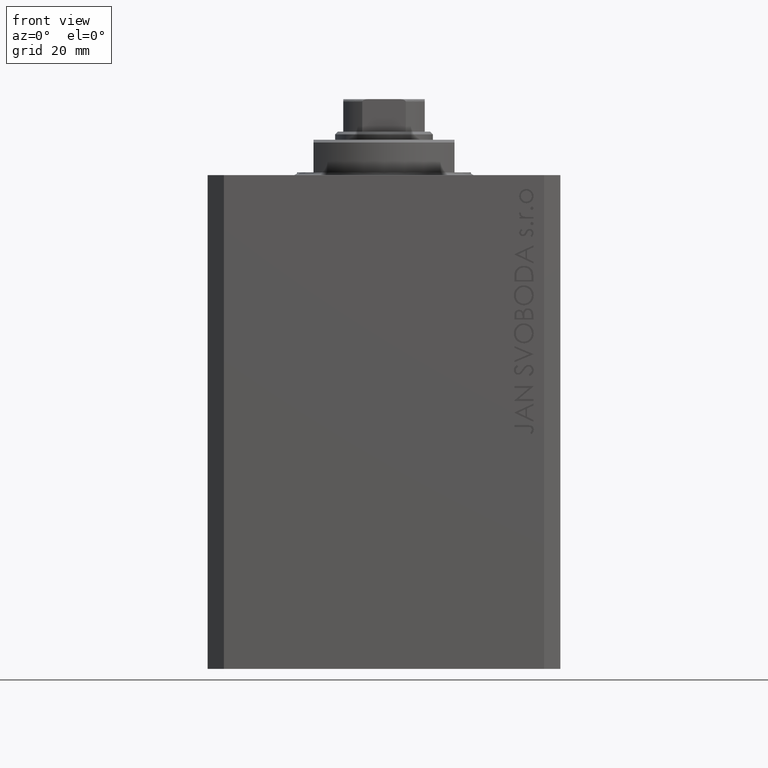
[diagram: clean part render]
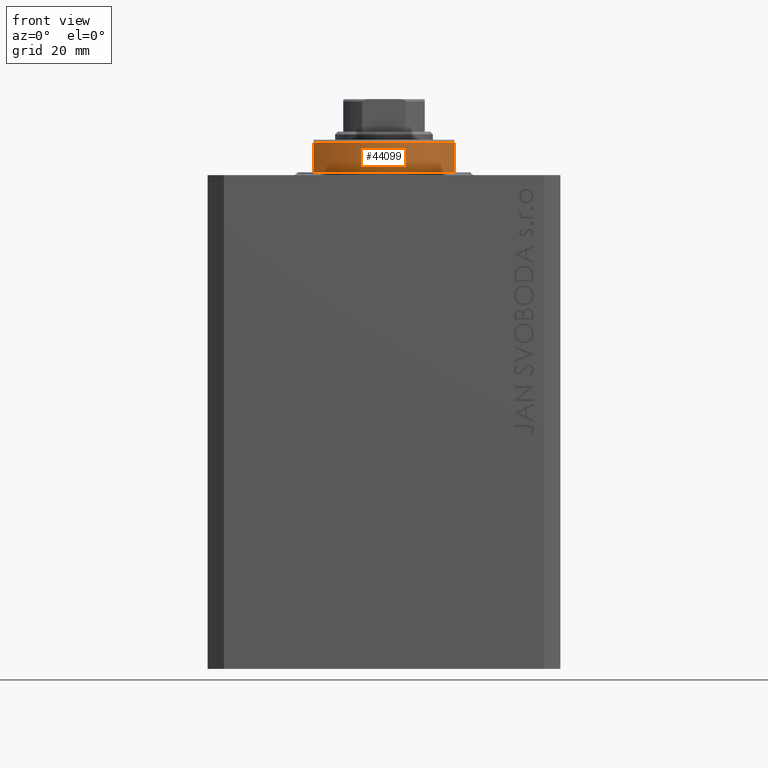
[diagram: same view with one face highlighted and labeled with its STEP entity id]
A machine part, front view. The second image highlights one B-rep face of the part: STEP entity #44099.
In plain terms, the highlighted cylindrical surface (partial cylindrical patch) has radius 16 mm, axis along (0, 0, -1).
Its self-contained STEP definition (entity closure, byte-faithful):
#42 = LINE ( 'NONE', #7239, #8966 ) ;
#4274 = DIRECTION ( 'NONE',  ( 1.000000000000000000, 0.000000000000000000, 0.000000000000000000 ) ) ;
#6532 = DIRECTION ( 'NONE',  ( 0.000000000000000000, 0.000000000000000000, -1.000000000000000000 ) ) ;
#6784 = DIRECTION ( 'NONE',  ( -1.000000000000000000, 0.000000000000000000, 0.000000000000000000 ) ) ;
#7151 = CARTESIAN_POINT ( 'NONE',  ( -13.00000000000000000, -9.327379053088815652, -0.4999999999999995559 ) ) ;
#7239 = CARTESIAN_POINT ( 'NONE',  ( -13.00000000000000000, -9.327379053088813876, -6.500000000000000000 ) ) ;
#8966 = VECTOR ( 'NONE', #6532, 1000.000000000000000 ) ;
#10358 = EDGE_CURVE ( 'NONE', #45262, #40142, #12047, .T. ) ;
#12047 = CIRCLE ( 'NONE', #35644, 16.00000000000000000 ) ;
#13875 = ORIENTED_EDGE ( 'NONE', *, *, #10358, .T. ) ;
#14603 = EDGE_CURVE ( 'NONE', #30960, #45262, #42, .T. ) ;
#15249 = FACE_OUTER_BOUND ( 'NONE', #28135, .T. ) ;
#15600 = CARTESIAN_POINT ( 'NONE',  ( 0.000000000000000000, 0.000000000000000000, -0.4999999999999995559 ) ) ;
#16739 = CIRCLE ( 'NONE', #43429, 16.00000000000000000 ) ;
#19312 = DIRECTION ( 'NONE',  ( -0.000000000000000000, -0.000000000000000000, 1.000000000000000000 ) ) ;
#19483 = VECTOR ( 'NONE', #46785, 1000.000000000000000 ) ;
#19778 = CYLINDRICAL_SURFACE ( 'NONE', #25585, 16.00000000000000000 ) ;
#19875 = EDGE_CURVE ( 'NONE', #25481, #30960, #16739, .T. ) ;
#21327 = ORIENTED_EDGE ( 'NONE', *, *, #19875, .T. ) ;
#21698 = ORIENTED_EDGE ( 'NONE', *, *, #14603, .T. ) ;
#23065 = CARTESIAN_POINT ( 'NONE',  ( -13.00000000000000000, -9.327379053088815652, -6.000000000000023981 ) ) ;
#25077 = LINE ( 'NONE', #25534, #19483 ) ;
#25140 = CARTESIAN_POINT ( 'NONE',  ( 0.000000000000000000, 0.000000000000000000, -6.000000000000023981 ) ) ;
#25481 = VERTEX_POINT ( 'NONE', #33123 ) ;
#25534 = CARTESIAN_POINT ( 'NONE',  ( 13.00000000000000000, -9.327379053088813876, -6.500000000000000000 ) ) ;
#25585 = AXIS2_PLACEMENT_3D ( 'NONE', #34314, #19312, #4274 ) ;
#28135 = EDGE_LOOP ( 'NONE', ( #37076, #21327, #21698, #13875 ) ) ;
#30960 = VERTEX_POINT ( 'NONE', #7151 ) ;
#32955 = CARTESIAN_POINT ( 'NONE',  ( 13.00000000000000000, -9.327379053088815652, -6.000000000000023981 ) ) ;
#33123 = CARTESIAN_POINT ( 'NONE',  ( 13.00000000000000000, -9.327379053088815652, -0.4999999999999995559 ) ) ;
#33960 = DIRECTION ( 'NONE',  ( -0.000000000000000000, -0.000000000000000000, -1.000000000000000000 ) ) ;
#34314 = CARTESIAN_POINT ( 'NONE',  ( 0.000000000000000000, 0.000000000000000000, -6.500000000000000000 ) ) ;
#35644 = AXIS2_PLACEMENT_3D ( 'NONE', #25140, #39439, #6784 ) ;
#37076 = ORIENTED_EDGE ( 'NONE', *, *, #43981, .F. ) ;
#39439 = DIRECTION ( 'NONE',  ( 0.000000000000000000, 0.000000000000000000, 1.000000000000000000 ) ) ;
#40142 = VERTEX_POINT ( 'NONE', #32955 ) ;
#43429 = AXIS2_PLACEMENT_3D ( 'NONE', #15600, #33960, #43998 ) ;
#43981 = EDGE_CURVE ( 'NONE', #25481, #40142, #25077, .T. ) ;
#43998 = DIRECTION ( 'NONE',  ( 1.000000000000000000, 0.000000000000000000, 0.000000000000000000 ) ) ;
#44099 = ADVANCED_FACE ( 'NONE', ( #15249 ), #19778, .T. ) ;
#45262 = VERTEX_POINT ( 'NONE', #23065 ) ;
#46785 = DIRECTION ( 'NONE',  ( 0.000000000000000000, 0.000000000000000000, -1.000000000000000000 ) ) ;